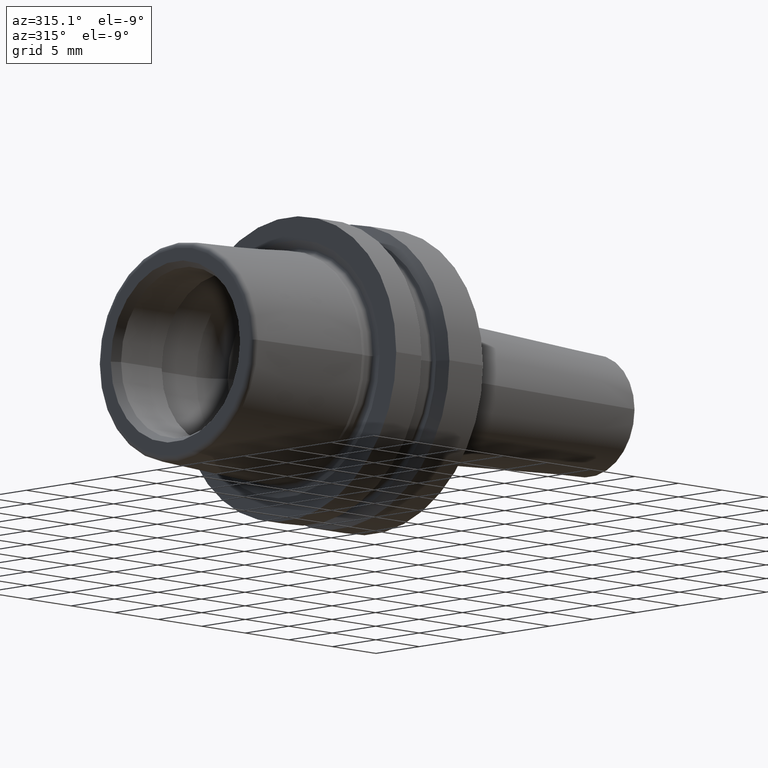
[diagram: clean part render]
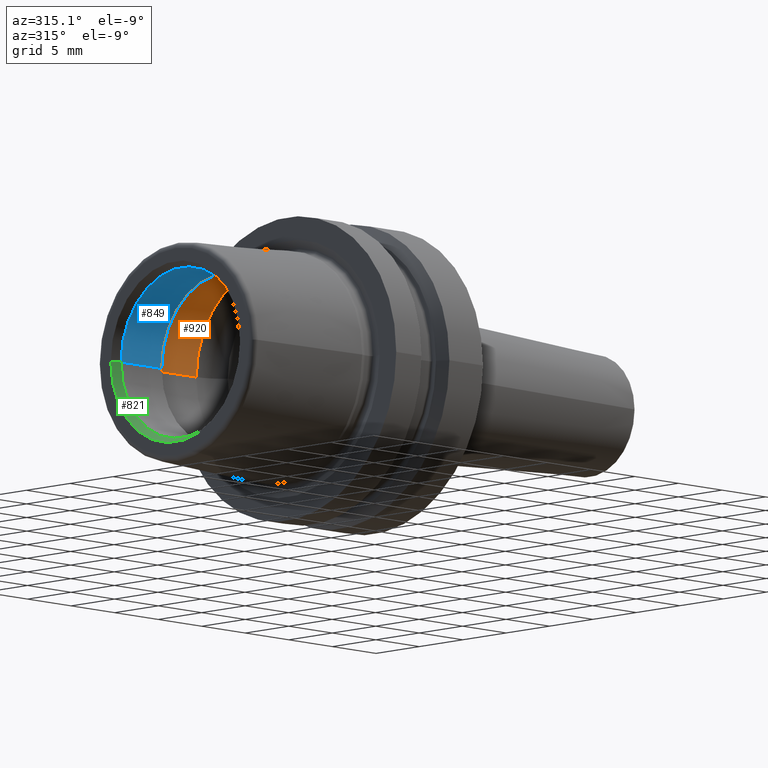
[diagram: same view with three faces highlighted in distinct colors, each labeled with its STEP entity id]
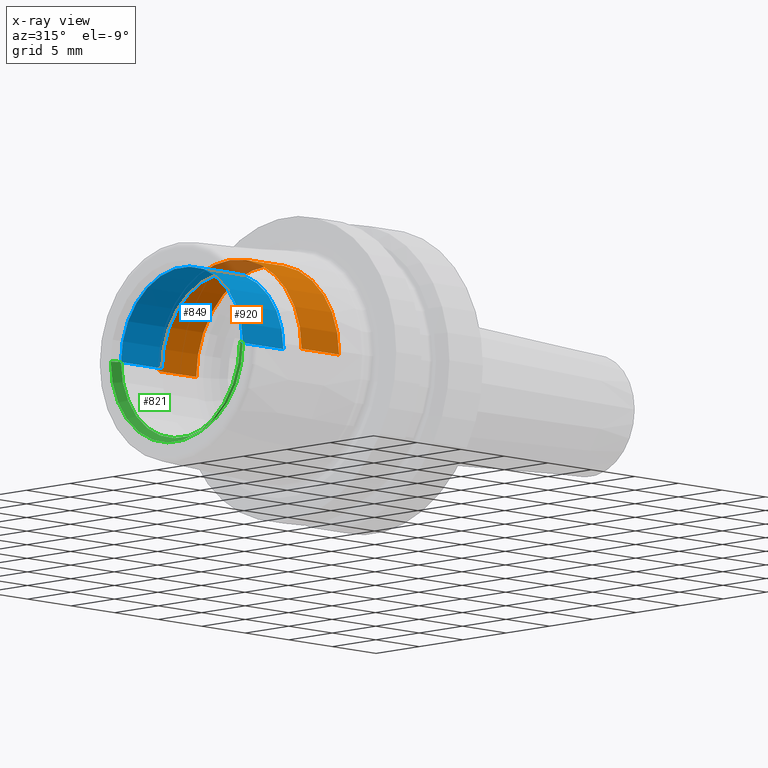
[diagram: x-ray of the same camera — body ghosted, the three highlighted faces saturated]
A machine part, auxiliary view with three faces highlighted in distinct colors.
The next image is the same camera in x-ray (body ghosted, the three faces saturated) — at least one of them is partly hidden behind the body in this view.
Their STEP definitions:

[orange] entity #920 — the highlighted cylindrical surface (partial cylindrical patch) has radius 8.2275 mm, axis along (1, 0, 0).
#147=CARTESIAN_POINT('',(-6.616772598408E0,0.E0,0.E0));
#148=DIRECTION('',(1.E0,0.E0,0.E0));
#149=DIRECTION('',(0.E0,1.E0,0.E0));
#150=AXIS2_PLACEMENT_3D('',#147,#148,#149);
#152=CARTESIAN_POINT('',(-2.307467549106E0,0.E0,0.E0));
#153=DIRECTION('',(1.E0,0.E0,0.E0));
#154=DIRECTION('',(0.E0,1.E0,0.E0));
#155=AXIS2_PLACEMENT_3D('',#152,#153,#154);
#157=DIRECTION('',(-1.E0,0.E0,0.E0));
#158=VECTOR('',#157,4.309305049301E0);
#159=CARTESIAN_POINT('',(-2.307467549106E0,8.2275E0,0.E0));
#160=LINE('',#159,#158);
#166=DIRECTION('',(-1.E0,0.E0,0.E0));
#167=VECTOR('',#166,4.309305049301E0);
#168=CARTESIAN_POINT('',(-2.307467549106E0,-8.2275E0,0.E0));
#169=LINE('',#168,#167);
#642=CARTESIAN_POINT('',(-2.307467549106E0,8.2275E0,0.E0));
#643=VERTEX_POINT('',#642);
#644=CARTESIAN_POINT('',(-6.616772598408E0,8.2275E0,0.E0));
#645=VERTEX_POINT('',#644);
#654=CARTESIAN_POINT('',(-2.307467549106E0,-8.2275E0,0.E0));
#655=VERTEX_POINT('',#654);
#656=CARTESIAN_POINT('',(-6.616772598408E0,-8.2275E0,0.E0));
#657=VERTEX_POINT('',#656);
#906=CARTESIAN_POINT('',(-1.38425E1,0.E0,0.E0));
#907=DIRECTION('',(1.E0,0.E0,0.E0));
#908=DIRECTION('',(0.E0,-1.E0,0.E0));
#909=AXIS2_PLACEMENT_3D('',#906,#907,#908);
#910=CYLINDRICAL_SURFACE('',#909,8.2275E0);
#912=ORIENTED_EDGE('',*,*,#911,.T.);
#913=ORIENTED_EDGE('',*,*,#901,.T.);
#915=ORIENTED_EDGE('',*,*,#914,.F.);
#917=ORIENTED_EDGE('',*,*,#916,.F.);
#918=EDGE_LOOP('',(#912,#913,#915,#917));
#919=FACE_OUTER_BOUND('',#918,.F.);
#920=ADVANCED_FACE('',(#919),#910,.F.);
#151=CIRCLE('',#150,8.2275E0);
#156=CIRCLE('',#155,8.2275E0);
#901=EDGE_CURVE('',#645,#657,#151,.T.);
#911=EDGE_CURVE('',#643,#645,#160,.T.);
#914=EDGE_CURVE('',#655,#657,#169,.T.);
#916=EDGE_CURVE('',#643,#655,#156,.T.);

[blue] entity #849 — the highlighted cylindrical surface (partial cylindrical patch) has radius 7.0175 mm, axis along (1, 0, 0).
#78=CARTESIAN_POINT('',(-1.215E1,0.E0,0.E0));
#79=DIRECTION('',(1.E0,0.E0,0.E0));
#80=DIRECTION('',(0.E0,1.E0,0.E0));
#81=AXIS2_PLACEMENT_3D('',#78,#79,#80);
#96=DIRECTION('',(-1.E0,0.E0,0.E0));
#97=VECTOR('',#96,4.661428495116E0);
#98=CARTESIAN_POINT('',(-7.488571504884E0,7.0175E0,0.E0));
#99=LINE('',#98,#97);
#105=DIRECTION('',(-1.E0,0.E0,0.E0));
#106=VECTOR('',#105,4.661428495116E0);
#107=CARTESIAN_POINT('',(-7.488571504884E0,-7.0175E0,0.E0));
#108=LINE('',#107,#106);
#109=CARTESIAN_POINT('',(-7.488571504884E0,0.E0,0.E0));
#110=DIRECTION('',(1.E0,0.E0,0.E0));
#111=DIRECTION('',(0.E0,1.E0,0.E0));
#112=AXIS2_PLACEMENT_3D('',#109,#110,#111);
#648=CARTESIAN_POINT('',(-7.488571504884E0,7.0175E0,0.E0));
#649=VERTEX_POINT('',#648);
#650=CARTESIAN_POINT('',(-1.215E1,7.0175E0,0.E0));
#651=VERTEX_POINT('',#650);
#660=CARTESIAN_POINT('',(-7.488571504884E0,-7.0175E0,0.E0));
#661=VERTEX_POINT('',#660);
#662=CARTESIAN_POINT('',(-1.215E1,-7.0175E0,0.E0));
#663=VERTEX_POINT('',#662);
#837=CARTESIAN_POINT('',(-1.38425E1,0.E0,0.E0));
#838=DIRECTION('',(1.E0,0.E0,0.E0));
#839=DIRECTION('',(0.E0,-1.E0,0.E0));
#840=AXIS2_PLACEMENT_3D('',#837,#838,#839);
#841=CYLINDRICAL_SURFACE('',#840,7.0175E0);
#842=ORIENTED_EDGE('',*,*,#827,.T.);
#843=ORIENTED_EDGE('',*,*,#804,.T.);
#844=ORIENTED_EDGE('',*,*,#831,.F.);
#846=ORIENTED_EDGE('',*,*,#845,.F.);
#847=EDGE_LOOP('',(#842,#843,#844,#846));
#848=FACE_OUTER_BOUND('',#847,.F.);
#849=ADVANCED_FACE('',(#848),#841,.F.);
#82=CIRCLE('',#81,7.0175E0);
#113=CIRCLE('',#112,7.0175E0);
#804=EDGE_CURVE('',#651,#663,#82,.T.);
#827=EDGE_CURVE('',#649,#651,#99,.T.);
#831=EDGE_CURVE('',#661,#663,#108,.T.);
#845=EDGE_CURVE('',#649,#661,#113,.T.);

[green] entity #821 — the highlighted conical surface has half-angle 30 deg.
#73=CARTESIAN_POINT('',(-1.29E1,0.E0,0.E0));
#74=DIRECTION('',(1.E0,0.E0,0.E0));
#75=DIRECTION('',(0.E0,-1.E0,0.E0));
#76=AXIS2_PLACEMENT_3D('',#73,#74,#75);
#83=DIRECTION('',(-8.660254037844E-1,5.E-1,0.E0));
#84=VECTOR('',#83,8.660254037844E-1);
#85=CARTESIAN_POINT('',(-1.215E1,7.0175E0,0.E0));
#86=LINE('',#85,#84);
#87=CARTESIAN_POINT('',(-1.215E1,0.E0,0.E0));
#88=DIRECTION('',(-1.E0,0.E0,0.E0));
#89=DIRECTION('',(0.E0,1.E0,0.E0));
#90=AXIS2_PLACEMENT_3D('',#87,#88,#89);
#92=DIRECTION('',(-8.660254037844E-1,-5.E-1,0.E0));
#93=VECTOR('',#92,8.660254037844E-1);
#94=CARTESIAN_POINT('',(-1.215E1,-7.0175E0,0.E0));
#95=LINE('',#94,#93);
#650=CARTESIAN_POINT('',(-1.215E1,7.0175E0,0.E0));
#651=VERTEX_POINT('',#650);
#662=CARTESIAN_POINT('',(-1.215E1,-7.0175E0,0.E0));
#663=VERTEX_POINT('',#662);
#664=CARTESIAN_POINT('',(-1.29E1,7.450512701892E0,0.E0));
#665=VERTEX_POINT('',#664);
#666=CARTESIAN_POINT('',(-1.29E1,-7.450512701892E0,0.E0));
#667=VERTEX_POINT('',#666);
#809=CARTESIAN_POINT('',(-1.2525E1,0.E0,0.E0));
#810=DIRECTION('',(-1.E0,0.E0,0.E0));
#811=DIRECTION('',(0.E0,1.E0,0.E0));
#812=AXIS2_PLACEMENT_3D('',#809,#810,#811);
#813=CONICAL_SURFACE('',#812,7.234006350946E0,3.E1);
#814=ORIENTED_EDGE('',*,*,#799,.F.);
#816=ORIENTED_EDGE('',*,*,#815,.T.);
#817=ORIENTED_EDGE('',*,*,#802,.T.);
#818=ORIENTED_EDGE('',*,*,#789,.T.);
#819=EDGE_LOOP('',(#814,#816,#817,#818));
#820=FACE_OUTER_BOUND('',#819,.F.);
#821=ADVANCED_FACE('',(#820),#813,.F.);
#77=CIRCLE('',#76,7.450512701892E0);
#91=CIRCLE('',#90,7.0175E0);
#789=EDGE_CURVE('',#667,#665,#77,.T.);
#799=EDGE_CURVE('',#651,#665,#86,.T.);
#802=EDGE_CURVE('',#663,#667,#95,.T.);
#815=EDGE_CURVE('',#651,#663,#91,.T.);